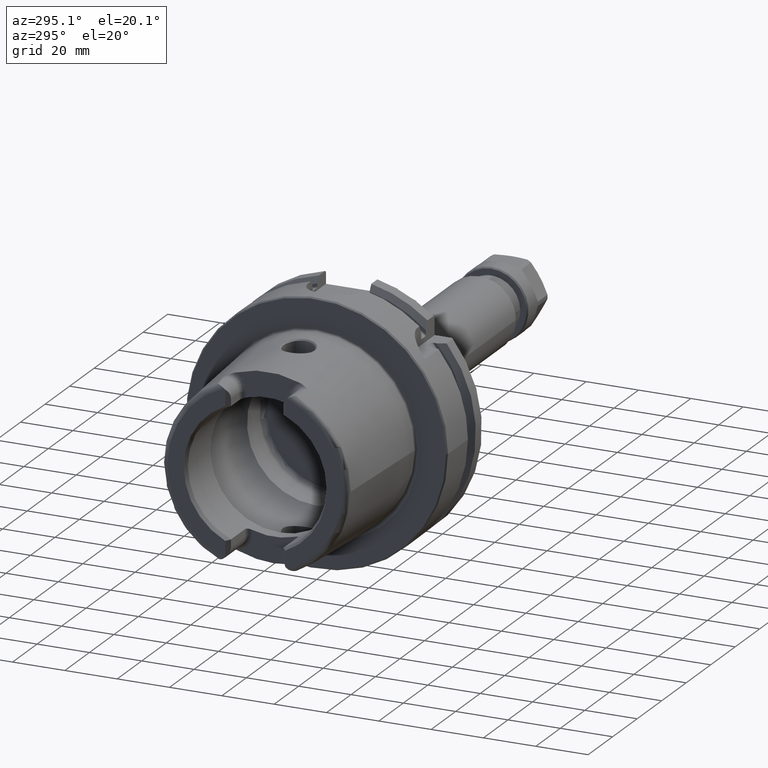
[diagram: clean part render]
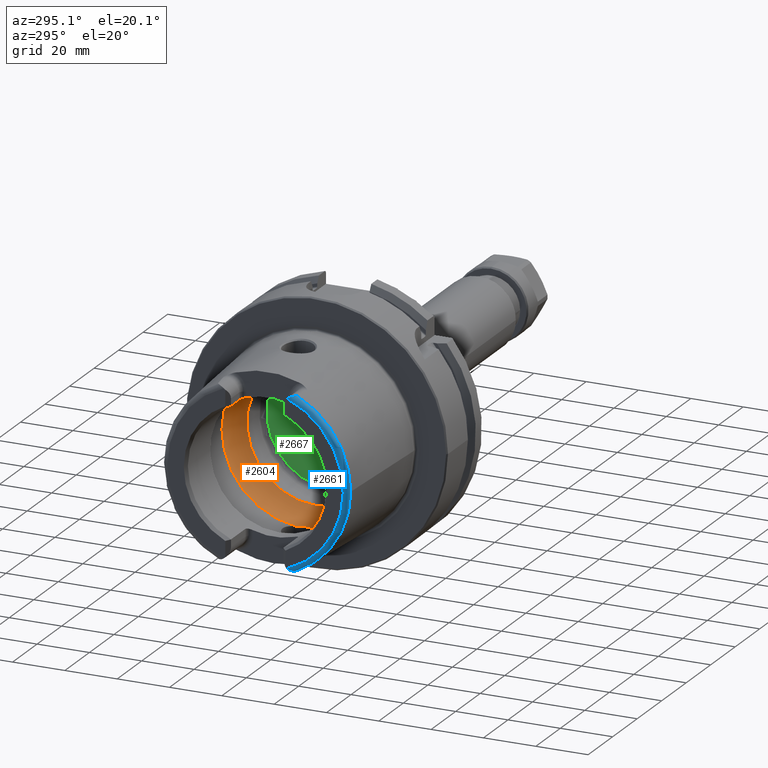
[diagram: same view with three faces highlighted in distinct colors, each labeled with its STEP entity id]
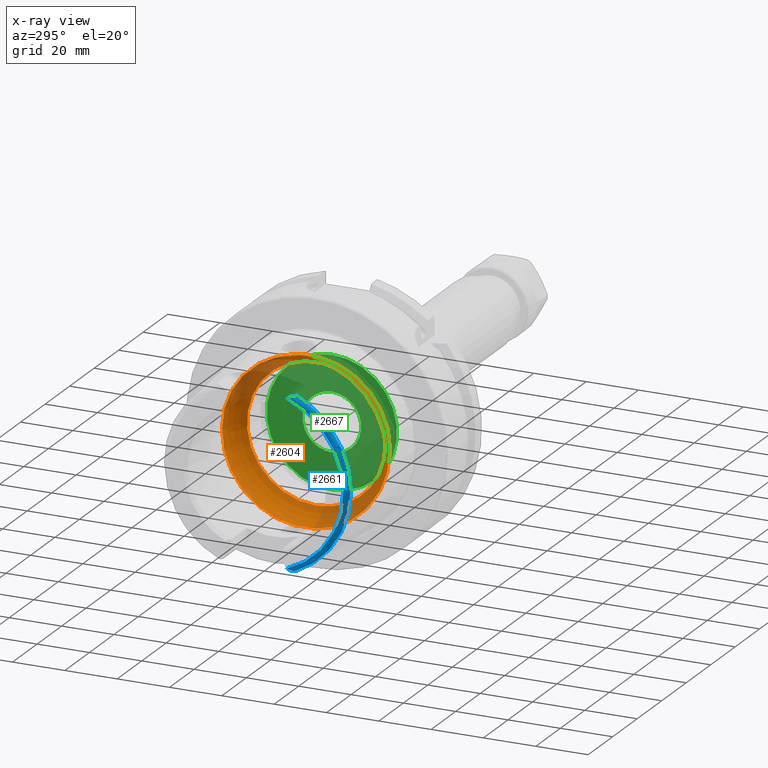
[diagram: x-ray of the same camera — body ghosted, the three highlighted faces saturated]
A machine part, auxiliary view with three faces highlighted in distinct colors.
The next image is the same camera in x-ray (body ghosted, the three faces saturated) — at least one of them is partly hidden behind the body in this view.
Their STEP definitions:

[orange] entity #2604 — the highlighted toroidal blend (fillet) surface has major radius 19.5 mm and minor (blend) radius 12 mm.
#106=B_SPLINE_CURVE_WITH_KNOTS('',3,(#4552,#4553,#4554,#4555,#4556,#4557,
#4558,#4559,#4560,#4561),.UNSPECIFIED.,.F.,.F.,(4,2,2,2,4),(-0.704306975532235,
-0.563368317577754,-0.446049375641081,-0.386534165165624,-0.352317223799877),
 .UNSPECIFIED.);
#108=B_SPLINE_CURVE_WITH_KNOTS('',3,(#4594,#4595,#4596,#4597,#4598,#4599,
#4600,#4601,#4602,#4603),.UNSPECIFIED.,.F.,.F.,(4,2,2,2,4),(-0.352317223799877,
-0.339935606805379,-0.289031750490702,-0.208814277120691,0.),
 .UNSPECIFIED.);
#111=B_SPLINE_CURVE_WITH_KNOTS('',3,(#4744,#4745,#4746,#4747,#4748,#4749,
#4750,#4751,#4752,#4753),.UNSPECIFIED.,.F.,.F.,(4,2,2,2,4),(-0.704306975532881,
-0.563368317578124,-0.446049375641235,-0.386534165165663,-0.352317223799864),
 .UNSPECIFIED.);
#113=B_SPLINE_CURVE_WITH_KNOTS('',3,(#4786,#4787,#4788,#4789,#4790,#4791,
#4792,#4793,#4794,#4795),.UNSPECIFIED.,.F.,.F.,(4,2,2,2,4),(-0.352317223799864,
-0.339935606805357,-0.289031750490679,-0.208814277120681,0.),
 .UNSPECIFIED.);
#259=TOROIDAL_SURFACE('',#2892,19.5,12.);
#319=FACE_OUTER_BOUND('',#480,.T.);
#480=EDGE_LOOP('',(#1923,#1924,#1925,#1926,#1927,#1928,#1929,#1930,#1931,
#1932,#1933));
#941=CIRCLE('',#2887,31.5);
#944=CIRCLE('',#2890,31.5);
#945=CIRCLE('',#2891,31.5);
#946=CIRCLE('',#2893,26.5);
#947=CIRCLE('',#2894,26.5);
#948=CIRCLE('',#2895,12.);
#1151=VERTEX_POINT('',#4549);
#1152=VERTEX_POINT('',#4551);
#1153=VERTEX_POINT('',#4562);
#1156=VERTEX_POINT('',#4742);
#1157=VERTEX_POINT('',#4743);
#1158=VERTEX_POINT('',#4754);
#1159=VERTEX_POINT('',#4798);
#1162=VERTEX_POINT('',#4808);
#1163=VERTEX_POINT('',#4809);
#1440=EDGE_CURVE('',#1152,#1151,#106,.T.);
#1442=EDGE_CURVE('',#1151,#1153,#108,.T.);
#1446=EDGE_CURVE('',#1156,#1157,#111,.T.);
#1448=EDGE_CURVE('',#1157,#1158,#113,.T.);
#1450=EDGE_CURVE('',#1159,#1156,#941,.T.);
#1454=EDGE_CURVE('',#1153,#1159,#944,.T.);
#1455=EDGE_CURVE('',#1158,#1152,#945,.T.);
#1456=EDGE_CURVE('',#1162,#1163,#946,.T.);
#1457=EDGE_CURVE('',#1163,#1162,#947,.T.);
#1458=EDGE_CURVE('',#1163,#1151,#948,.T.);
#1923=ORIENTED_EDGE('',*,*,#1456,.F.);
#1924=ORIENTED_EDGE('',*,*,#1457,.F.);
#1925=ORIENTED_EDGE('',*,*,#1458,.T.);
#1926=ORIENTED_EDGE('',*,*,#1442,.T.);
#1927=ORIENTED_EDGE('',*,*,#1454,.T.);
#1928=ORIENTED_EDGE('',*,*,#1450,.T.);
#1929=ORIENTED_EDGE('',*,*,#1446,.T.);
#1930=ORIENTED_EDGE('',*,*,#1448,.T.);
#1931=ORIENTED_EDGE('',*,*,#1455,.T.);
#1932=ORIENTED_EDGE('',*,*,#1440,.T.);
#1933=ORIENTED_EDGE('',*,*,#1458,.F.);
#2604=ADVANCED_FACE('',(#319),#259,.F.);
#2887=AXIS2_PLACEMENT_3D('',#4799,#3363,#3364);
#2890=AXIS2_PLACEMENT_3D('',#4805,#3370,#3371);
#2891=AXIS2_PLACEMENT_3D('',#4806,#3372,#3373);
#2892=AXIS2_PLACEMENT_3D('',#4807,#3374,#3375);
#2893=AXIS2_PLACEMENT_3D('',#4810,#3376,#3377);
#2894=AXIS2_PLACEMENT_3D('',#4811,#3378,#3379);
#2895=AXIS2_PLACEMENT_3D('',#4812,#3380,#3381);
#3363=DIRECTION('center_axis',(-1.,0.,0.));
#3364=DIRECTION('ref_axis',(0.,0.,1.));
#3370=DIRECTION('center_axis',(-1.,0.,0.));
#3371=DIRECTION('ref_axis',(0.,0.,1.));
#3372=DIRECTION('center_axis',(-1.,0.,0.));
#3373=DIRECTION('ref_axis',(0.,0.,1.));
#3374=DIRECTION('center_axis',(-1.,0.,0.));
#3375=DIRECTION('ref_axis',(0.,0.,1.));
#3376=DIRECTION('center_axis',(-1.,0.,0.));
#3377=DIRECTION('ref_axis',(0.,0.,1.));
#3378=DIRECTION('center_axis',(-1.,0.,0.));
#3379=DIRECTION('ref_axis',(0.,0.,1.));
#3380=DIRECTION('center_axis',(0.,1.,-1.22464679914735E-16));
#3381=DIRECTION('ref_axis',(0.,-1.22464679914735E-16,-1.));
#4549=CARTESIAN_POINT('',(-9.,7.31685969699336E-16,-31.4582607431014));
#4551=CARTESIAN_POINT('',(-10.,3.31662479035542,-31.3249102153542));
#4552=CARTESIAN_POINT('Ctrl Pts',(-10.,3.31662479035541,-31.3249102153542));
#4553=CARTESIAN_POINT('Ctrl Pts',(-9.74127936765642,2.9265887617158,-31.3662065240371));
#4554=CARTESIAN_POINT('Ctrl Pts',(-9.52862762836098,2.50688318043554,-31.3949925235713));
#4555=CARTESIAN_POINT('Ctrl Pts',(-9.23240476385999,1.69927856892452,-31.4324255053116));
#4556=CARTESIAN_POINT('Ctrl Pts',(-9.13392344910017,1.31988974241601,-31.4435429781858));
#4557=CARTESIAN_POINT('Ctrl Pts',(-9.04220079429722,0.737558982965052,-31.4537190708018));
#4558=CARTESIAN_POINT('Ctrl Pts',(-9.02106779489129,0.540134132990375,-31.4559959808551));
#4559=CARTESIAN_POINT('Ctrl Pts',(-9.00325309475839,0.228126507331767,-31.4579131546092));
#4560=CARTESIAN_POINT('Ctrl Pts',(-9.,0.114070256385601,-31.4582607431014));
#4561=CARTESIAN_POINT('Ctrl Pts',(-9.,6.93889390390723E-16,-31.4582607431014));
#4562=CARTESIAN_POINT('',(-10.,-3.31662479035542,-31.3249102153542));
#4594=CARTESIAN_POINT('Ctrl Pts',(-9.,7.01335490450834E-16,-31.4582607431014));
#4595=CARTESIAN_POINT('Ctrl Pts',(-9.,-0.0412770448981316,-31.4582607431014));
#4596=CARTESIAN_POINT('Ctrl Pts',(-9.0004259501075,-0.0825559236689198,
-31.4582151361457));
#4597=CARTESIAN_POINT('Ctrl Pts',(-9.00478075477959,-0.293516919658797,
-31.4577484235034));
#4598=CARTESIAN_POINT('Ctrl Pts',(-9.01548241237086,-0.462981091842713,
-31.4566045938877));
#4599=CARTESIAN_POINT('Ctrl Pts',(-9.06151123201634,-0.897706518793593,
-31.4515940123075));
#4600=CARTESIAN_POINT('Ctrl Pts',(-9.10742242341762,-1.16146830462694,-31.4465573898449));
#4601=CARTESIAN_POINT('Ctrl Pts',(-9.33560100291262,-2.09736419662528,-31.4200720324784));
#4602=CARTESIAN_POINT('Ctrl Pts',(-9.61673416003176,-2.73882979665765,-31.3860861033828));
#4603=CARTESIAN_POINT('Ctrl Pts',(-10.,-3.31662479035541,-31.3249102153542));
#4742=CARTESIAN_POINT('',(-10.,-3.31662479035542,31.3249102153542));
#4743=CARTESIAN_POINT('',(-8.99999999999999,7.75054056598756E-16,31.4582607431014));
#4744=CARTESIAN_POINT('Ctrl Pts',(-9.99999999999999,-3.31662479035541,31.3249102153542));
#4745=CARTESIAN_POINT('Ctrl Pts',(-9.74127936765643,-2.92658876171583,31.3662065240371));
#4746=CARTESIAN_POINT('Ctrl Pts',(-9.52862762836099,-2.50688318043561,31.3949925235713));
#4747=CARTESIAN_POINT('Ctrl Pts',(-9.23240476385996,-1.69927856892447,31.4324255053116));
#4748=CARTESIAN_POINT('Ctrl Pts',(-9.13392344910015,-1.31988974241592,31.4435429781858));
#4749=CARTESIAN_POINT('Ctrl Pts',(-9.04220079429722,-0.737558982965067,
31.4537190708018));
#4750=CARTESIAN_POINT('Ctrl Pts',(-9.02106779489129,-0.540134132990415,
31.4559959808551));
#4751=CARTESIAN_POINT('Ctrl Pts',(-9.00325309475839,-0.228126507331796,
31.4579131546092));
#4752=CARTESIAN_POINT('Ctrl Pts',(-8.99999999999999,-0.114070256385655,
31.4582607431014));
#4753=CARTESIAN_POINT('Ctrl Pts',(-8.99999999999999,7.97972798949331E-16,
31.4582607431014));
#4754=CARTESIAN_POINT('',(-10.,3.31662479035542,31.3249102153542));
#4786=CARTESIAN_POINT('Ctrl Pts',(-8.99999999999999,8.16547887892294E-16,
31.4582607431014));
#4787=CARTESIAN_POINT('Ctrl Pts',(-8.99999999999999,0.0412770448981195,
31.4582607431014));
#4788=CARTESIAN_POINT('Ctrl Pts',(-9.00042595010749,0.0825559236689046,
31.4582151361457));
#4789=CARTESIAN_POINT('Ctrl Pts',(-9.00478075477959,0.293516919658727,31.4577484235034));
#4790=CARTESIAN_POINT('Ctrl Pts',(-9.01548241237085,0.462981091842669,31.4566045938877));
#4791=CARTESIAN_POINT('Ctrl Pts',(-9.06151123201633,0.897706518793561,31.4515940123075));
#4792=CARTESIAN_POINT('Ctrl Pts',(-9.1074224234176,1.16146830462691,31.4465573898449));
#4793=CARTESIAN_POINT('Ctrl Pts',(-9.33560100291262,2.09736419662534,31.4200720324784));
#4794=CARTESIAN_POINT('Ctrl Pts',(-9.61673416003176,2.73882979665767,31.3860861033828));
#4795=CARTESIAN_POINT('Ctrl Pts',(-9.99999999999999,3.3166247903554,31.3249102153542));
#4798=CARTESIAN_POINT('',(-10.,-31.5,3.85763741731416E-15));
#4799=CARTESIAN_POINT('Origin',(-10.,0.,0.));
#4805=CARTESIAN_POINT('Origin',(-10.,0.,0.));
#4806=CARTESIAN_POINT('Origin',(-10.,0.,0.));
#4807=CARTESIAN_POINT('Origin',(-10.,0.,0.));
#4808=CARTESIAN_POINT('',(-0.253205655191033,-26.5,3.24531401774049E-15));
#4809=CARTESIAN_POINT('',(-0.253205655191033,-3.24531401774049E-15,-26.5));
#4810=CARTESIAN_POINT('Origin',(-0.253205655191033,0.,0.));
#4811=CARTESIAN_POINT('Origin',(-0.253205655191033,0.,0.));
#4812=CARTESIAN_POINT('Origin',(-10.,-2.38806125833734E-15,-19.5));

[blue] entity #2661 — the highlighted toroidal blend (fillet) surface has major radius 33.6002 mm and minor (blend) radius 2 mm.
#91=B_SPLINE_CURVE_WITH_KNOTS('',3,(#4156,#4157,#4158,#4159,#4160,#4161,
#4162,#4163,#4164,#4165,#4166,#4167),.UNSPECIFIED.,.F.,.F.,(4,2,2,2,2,4),
(-0.330531435638015,-0.267908000768776,-0.159978118105109,-0.0786368985358203,
-0.0319888850382474,0.),.UNSPECIFIED.);
#92=B_SPLINE_CURVE_WITH_KNOTS('',3,(#4192,#4193,#4194,#4195,#4196,#4197,
#4198,#4199,#4200,#4201,#4202,#4203),.UNSPECIFIED.,.F.,.F.,(4,2,2,2,2,4),
(-0.744571126726488,-0.701342830888658,-0.656522678464695,-0.531122919946982,
-0.40678456724179,-0.320835419118985),.UNSPECIFIED.);
#275=TOROIDAL_SURFACE('',#3005,33.6001839277785,2.);
#376=FACE_OUTER_BOUND('',#538,.T.);
#538=EDGE_LOOP('',(#2245,#2246,#2247,#2248,#2249));
#936=CIRCLE('',#2879,35.5976786130245);
#940=CIRCLE('',#2883,35.5976786130245);
#1002=CIRCLE('',#3006,33.6001839277785);
#1116=VERTEX_POINT('',#4136);
#1117=VERTEX_POINT('',#4155);
#1125=VERTEX_POINT('',#4189);
#1126=VERTEX_POINT('',#4191);
#1141=VERTEX_POINT('',#4410);
#1393=EDGE_CURVE('',#1117,#1116,#91,.T.);
#1405=EDGE_CURVE('',#1126,#1125,#92,.T.);
#1425=EDGE_CURVE('',#1141,#1116,#936,.T.);
#1437=EDGE_CURVE('',#1126,#1141,#940,.T.);
#1604=EDGE_CURVE('',#1125,#1117,#1002,.T.);
#2245=ORIENTED_EDGE('',*,*,#1405,.T.);
#2246=ORIENTED_EDGE('',*,*,#1604,.T.);
#2247=ORIENTED_EDGE('',*,*,#1393,.T.);
#2248=ORIENTED_EDGE('',*,*,#1425,.F.);
#2249=ORIENTED_EDGE('',*,*,#1437,.F.);
#2661=ADVANCED_FACE('',(#376),#275,.T.);
#2879=AXIS2_PLACEMENT_3D('',#4412,#3344,#3345);
#2883=AXIS2_PLACEMENT_3D('',#4520,#3352,#3353);
#3005=AXIS2_PLACEMENT_3D('',#5403,#3652,#3653);
#3006=AXIS2_PLACEMENT_3D('',#5404,#3654,#3655);
#3344=DIRECTION('center_axis',(1.,0.,0.));
#3345=DIRECTION('ref_axis',(0.,0.,-1.));
#3352=DIRECTION('center_axis',(1.,0.,0.));
#3353=DIRECTION('ref_axis',(0.,0.,-1.));
#3652=DIRECTION('center_axis',(1.,0.,0.));
#3653=DIRECTION('ref_axis',(0.,0.,-1.));
#3654=DIRECTION('center_axis',(1.,0.,0.));
#3655=DIRECTION('ref_axis',(0.,0.,-1.));
#4136=CARTESIAN_POINT('',(-48.1000748840304,-15.0787152148571,-32.2463497175327));
#4155=CARTESIAN_POINT('',(-50.,-12.0743049948301,-31.355757348091));
#4156=CARTESIAN_POINT('Ctrl Pts',(-50.,-12.0743049948301,-31.355757348091));
#4157=CARTESIAN_POINT('Ctrl Pts',(-50.,-12.285838123051,-31.5051926299063));
#4158=CARTESIAN_POINT('Ctrl Pts',(-49.9653696826563,-12.5170331398668,-31.6430588255455));
#4159=CARTESIAN_POINT('Ctrl Pts',(-49.7810065498998,-13.1911222585012,-31.9692156023965));
#4160=CARTESIAN_POINT('Ctrl Pts',(-49.5806767805336,-13.6194685503756,-32.0969374367804));
#4161=CARTESIAN_POINT('Ctrl Pts',(-49.1716377200869,-14.2730899346346,-32.2192774131036));
#4162=CARTESIAN_POINT('Ctrl Pts',(-48.9774936618895,-14.5201969661755,-32.2395201073332));
#4163=CARTESIAN_POINT('Ctrl Pts',(-48.6675943633754,-14.8125911006811,-32.2505512851489));
#4164=CARTESIAN_POINT('Ctrl Pts',(-48.5398374959923,-14.912197389574,-32.2504544601106));
#4165=CARTESIAN_POINT('Ctrl Pts',(-48.3063803700173,-15.0305209025153,-32.2482139663407));
#4166=CARTESIAN_POINT('Ctrl Pts',(-48.2058276135777,-15.0650786147019,-32.2468774553032));
#4167=CARTESIAN_POINT('Ctrl Pts',(-48.1000748840303,-15.0787152148571,-32.2463497175327));
#4189=CARTESIAN_POINT('',(-50.,-12.0743049948301,31.355757348091));
#4191=CARTESIAN_POINT('',(-48.1000748840304,-15.0787152148571,32.2463497175327));
#4192=CARTESIAN_POINT('Ctrl Pts',(-48.1000748840303,-15.078715214857,32.2463497175327));
#4193=CARTESIAN_POINT('Ctrl Pts',(-48.2106037175751,-15.0644627457708,32.2469012894916));
#4194=CARTESIAN_POINT('Ctrl Pts',(-48.3154292138325,-15.0273539899824,32.2483385926998));
#4195=CARTESIAN_POINT('Ctrl Pts',(-48.5163157198425,-14.9224481921473,32.2501843906849));
#4196=CARTESIAN_POINT('Ctrl Pts',(-48.6121978837475,-14.8534224082597,32.2504380645671));
#4197=CARTESIAN_POINT('Ctrl Pts',(-48.9452641842069,-14.5689466462259,32.2439376039327));
#4198=CARTESIAN_POINT('Ctrl Pts',(-49.1880723127851,-14.2607780319836,32.2227822574559));
#4199=CARTESIAN_POINT('Ctrl Pts',(-49.6101150709732,-13.5547183211213,32.0774653757186));
#4200=CARTESIAN_POINT('Ctrl Pts',(-49.7793847368059,-13.1765954395989,31.957165019384));
#4201=CARTESIAN_POINT('Ctrl Pts',(-49.9574602860506,-12.5580264083439,31.6658578550016));
#4202=CARTESIAN_POINT('Ctrl Pts',(-50.,-12.3091419271059,31.5216553492714));
#4203=CARTESIAN_POINT('Ctrl Pts',(-50.,-12.0743049948301,31.355757348091));
#4410=CARTESIAN_POINT('',(-48.1000748840304,-35.5976786130245,-4.35945831705167E-15));
#4412=CARTESIAN_POINT('Origin',(-48.1000748840304,0.,0.));
#4520=CARTESIAN_POINT('Origin',(-48.1000748840304,0.,0.));
#5403=CARTESIAN_POINT('Origin',(-48.,0.,0.));
#5404=CARTESIAN_POINT('Origin',(-50.,0.,0.));

[green] entity #2667 — the highlighted planar face has unit normal (1, 0, 0).
#187=FACE_BOUND('',#546,.T.);
#230=PLANE('',#3016);
#382=FACE_OUTER_BOUND('',#545,.T.);
#545=EDGE_LOOP('',(#2270));
#546=EDGE_LOOP('',(#2271));
#1004=CIRCLE('',#3012,11.188101);
#1007=CIRCLE('',#3017,24.9);
#1251=VERTEX_POINT('',#5410);
#1254=VERTEX_POINT('',#5419);
#1606=EDGE_CURVE('',#1251,#1251,#1004,.T.);
#1610=EDGE_CURVE('',#1254,#1254,#1007,.T.);
#2270=ORIENTED_EDGE('',*,*,#1610,.T.);
#2271=ORIENTED_EDGE('',*,*,#1606,.T.);
#2667=ADVANCED_FACE('',(#382,#187),#230,.F.);
#3012=AXIS2_PLACEMENT_3D('',#5411,#3666,#3667);
#3016=AXIS2_PLACEMENT_3D('',#5418,#3675,#3676);
#3017=AXIS2_PLACEMENT_3D('',#5420,#3677,#3678);
#3666=DIRECTION('center_axis',(1.,0.,0.));
#3667=DIRECTION('ref_axis',(0.,0.,1.));
#3675=DIRECTION('center_axis',(1.,0.,0.));
#3676=DIRECTION('ref_axis',(0.,0.,-1.));
#3677=DIRECTION('center_axis',(-1.,0.,0.));
#3678=DIRECTION('ref_axis',(0.,0.,1.));
#5410=CARTESIAN_POINT('',(12.5,-1.37014720781873E-15,-11.188101));
#5411=CARTESIAN_POINT('Origin',(12.5,0.,0.));
#5418=CARTESIAN_POINT('Origin',(12.5,24.9,0.));
#5419=CARTESIAN_POINT('',(12.5,-3.04937052987691E-15,-24.9));
#5420=CARTESIAN_POINT('Origin',(12.5,0.,0.));